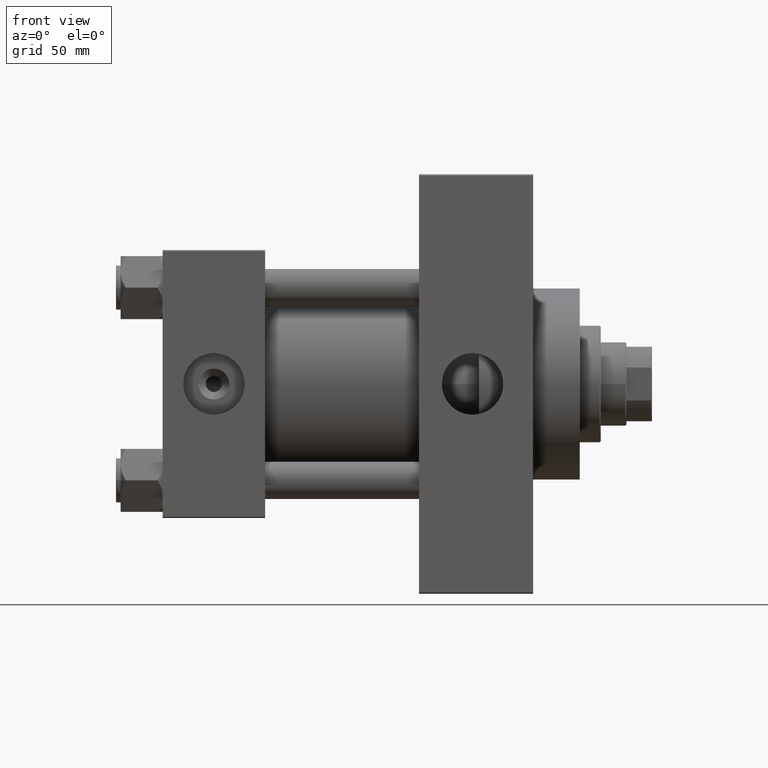
[diagram: clean part render]
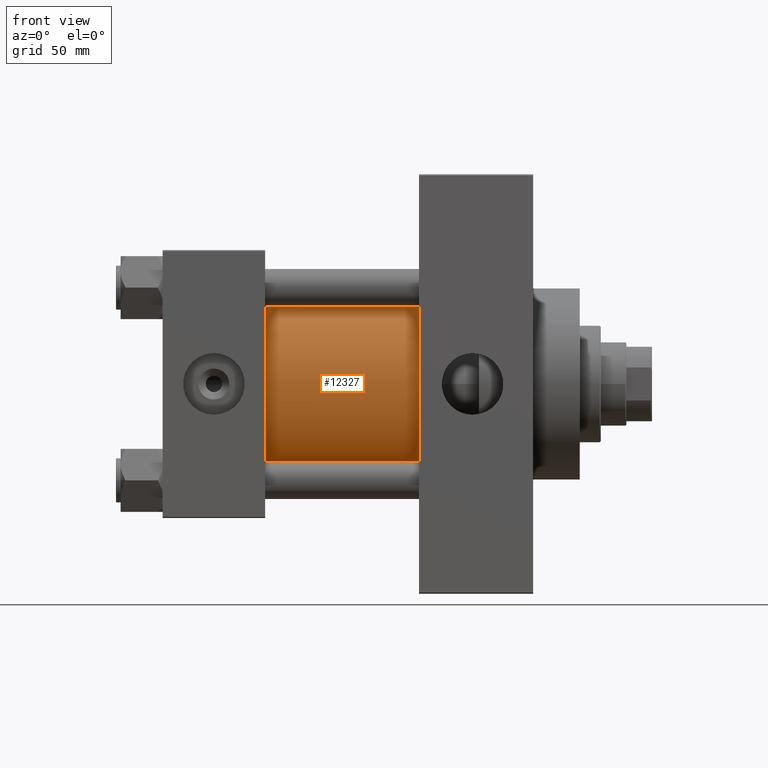
[diagram: same view with one face highlighted and labeled with its STEP entity id]
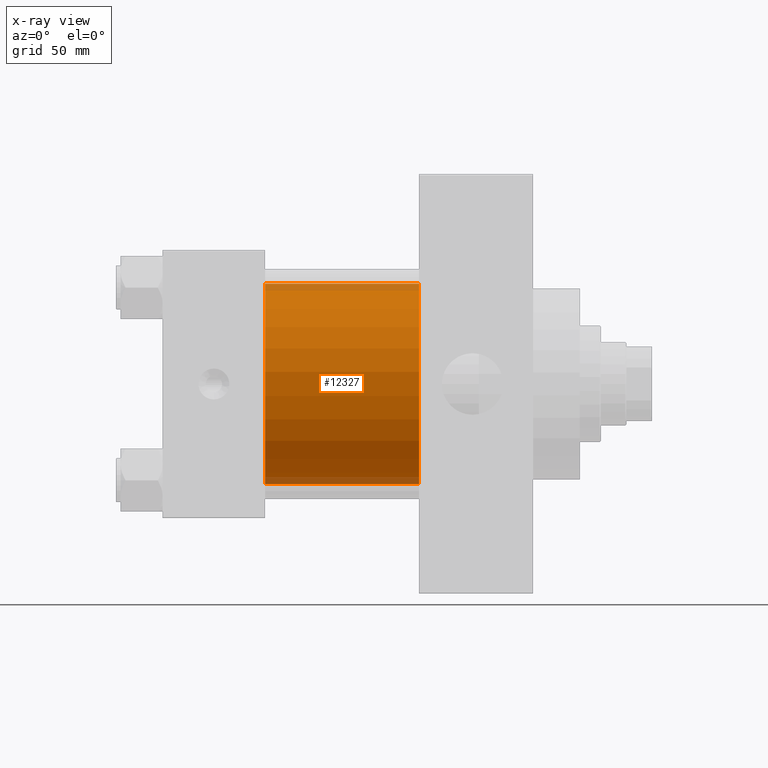
[diagram: x-ray of the same camera — body ghosted, the highlighted face saturated]
A machine part, front view. The second image highlights one B-rep face of the part: STEP entity #12327.
The next image is the same camera in x-ray: the body ghosted, the highlighted face saturated — about 7% of this face is hidden behind the body in this view.
In plain terms, the highlighted cylindrical surface (partial cylindrical patch) has radius 43 mm, axis along (-1, -0, -0).
Its self-contained STEP definition (entity closure, byte-faithful):
#745 = EDGE_CURVE ( 'NONE', #26932, #2042, #11496, .T. ) ;
#1069 = CARTESIAN_POINT ( 'NONE',  ( 110.0000000000000000, 2.663896022368408223E-15, -43.00000000000000000 ) ) ;
#2042 = VERTEX_POINT ( 'NONE', #25023 ) ;
#2239 = CARTESIAN_POINT ( 'NONE',  ( 110.0000000000000000, -2.602085213965210642E-15, 0.000000000000000000 ) ) ;
#4206 = VECTOR ( 'NONE', #30488, 1000.000000000000000 ) ;
#9396 = DIRECTION ( 'NONE',  ( 0.000000000000000000, 0.000000000000000000, 1.000000000000000000 ) ) ;
#9423 = EDGE_CURVE ( 'NONE', #24935, #26932, #46465, .T. ) ;
#9486 = FACE_OUTER_BOUND ( 'NONE', #17373, .T. ) ;
#11496 = CIRCLE ( 'NONE', #14576, 43.00000000000000000 ) ;
#12327 = ADVANCED_FACE ( 'NONE', ( #9486 ), #20593, .T. ) ;
#12780 = CARTESIAN_POINT ( 'NONE',  ( 44.00000000000000000, -2.602085213965210642E-15, 0.000000000000000000 ) ) ;
#13264 = DIRECTION ( 'NONE',  ( 1.000000000000000000, -0.000000000000000000, 0.000000000000000000 ) ) ;
#13759 = CARTESIAN_POINT ( 'NONE',  ( 110.0000000000000000, 2.663896022368408223E-15, -43.00000000000000000 ) ) ;
#14027 = ORIENTED_EDGE ( 'NONE', *, *, #9423, .T. ) ;
#14467 = ORIENTED_EDGE ( 'NONE', *, *, #30331, .F. ) ;
#14576 = AXIS2_PLACEMENT_3D ( 'NONE', #12780, #13264, #9396 ) ;
#16006 = CARTESIAN_POINT ( 'NONE',  ( 44.00000000000000000, -2.602085213965210642E-15, 43.00000000000000000 ) ) ;
#16959 = DIRECTION ( 'NONE',  ( -1.000000000000000000, -0.000000000000000000, -0.000000000000000000 ) ) ;
#17067 = CARTESIAN_POINT ( 'NONE',  ( 110.0000000000000000, -2.602085213965210642E-15, 43.00000000000000000 ) ) ;
#17373 = EDGE_LOOP ( 'NONE', ( #14467, #19837, #14027, #40199 ) ) ;
#18383 = AXIS2_PLACEMENT_3D ( 'NONE', #2239, #16959, #31665 ) ;
#19837 = ORIENTED_EDGE ( 'NONE', *, *, #42250, .F. ) ;
#20593 = CYLINDRICAL_SURFACE ( 'NONE', #18383, 43.00000000000000000 ) ;
#24935 = VERTEX_POINT ( 'NONE', #34850 ) ;
#25023 = CARTESIAN_POINT ( 'NONE',  ( 44.00000000000000000, 2.663896022368408223E-15, -43.00000000000000000 ) ) ;
#26395 = AXIS2_PLACEMENT_3D ( 'NONE', #37839, #30376, #41214 ) ;
#26932 = VERTEX_POINT ( 'NONE', #16006 ) ;
#27917 = DIRECTION ( 'NONE',  ( -1.000000000000000000, -0.000000000000000000, -0.000000000000000000 ) ) ;
#30331 = EDGE_CURVE ( 'NONE', #36850, #2042, #33872, .T. ) ;
#30376 = DIRECTION ( 'NONE',  ( 1.000000000000000000, 0.000000000000000000, 0.000000000000000000 ) ) ;
#30488 = DIRECTION ( 'NONE',  ( -1.000000000000000000, -0.000000000000000000, -0.000000000000000000 ) ) ;
#31665 = DIRECTION ( 'NONE',  ( 0.000000000000000000, 0.000000000000000000, 1.000000000000000000 ) ) ;
#31813 = CIRCLE ( 'NONE', #26395, 43.00000000000000000 ) ;
#33872 = LINE ( 'NONE', #1069, #4206 ) ;
#34850 = CARTESIAN_POINT ( 'NONE',  ( 110.0000000000000000, -2.602085213965210642E-15, 43.00000000000000000 ) ) ;
#36850 = VERTEX_POINT ( 'NONE', #13759 ) ;
#37839 = CARTESIAN_POINT ( 'NONE',  ( 110.0000000000000000, -2.602085213965210642E-15, 0.000000000000000000 ) ) ;
#40199 = ORIENTED_EDGE ( 'NONE', *, *, #745, .T. ) ;
#41214 = DIRECTION ( 'NONE',  ( 0.000000000000000000, 0.000000000000000000, -1.000000000000000000 ) ) ;
#42250 = EDGE_CURVE ( 'NONE', #24935, #36850, #31813, .T. ) ;
#46465 = LINE ( 'NONE', #17067, #47523 ) ;
#47523 = VECTOR ( 'NONE', #27917, 1000.000000000000000 ) ;